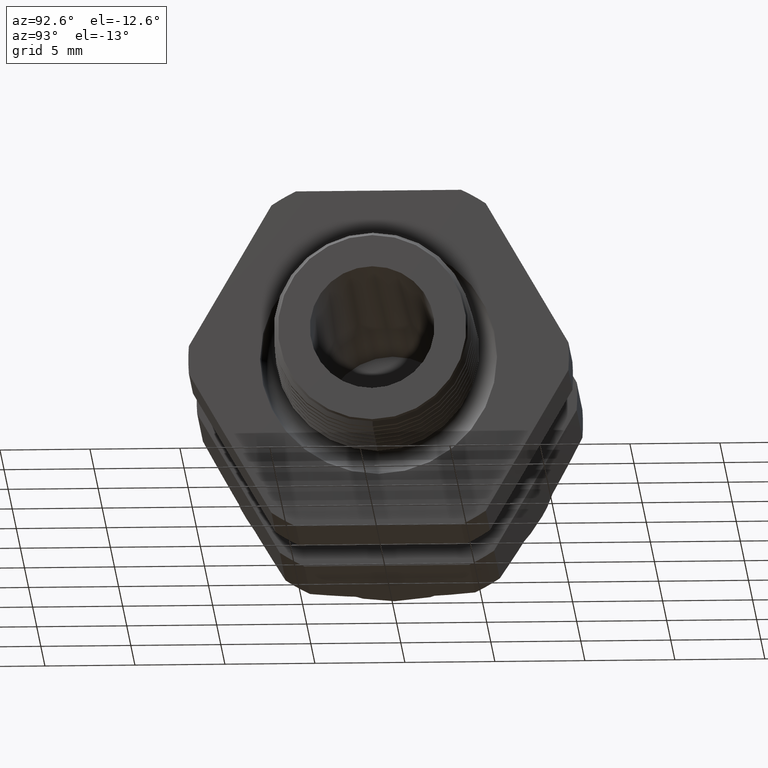
[diagram: clean part render]
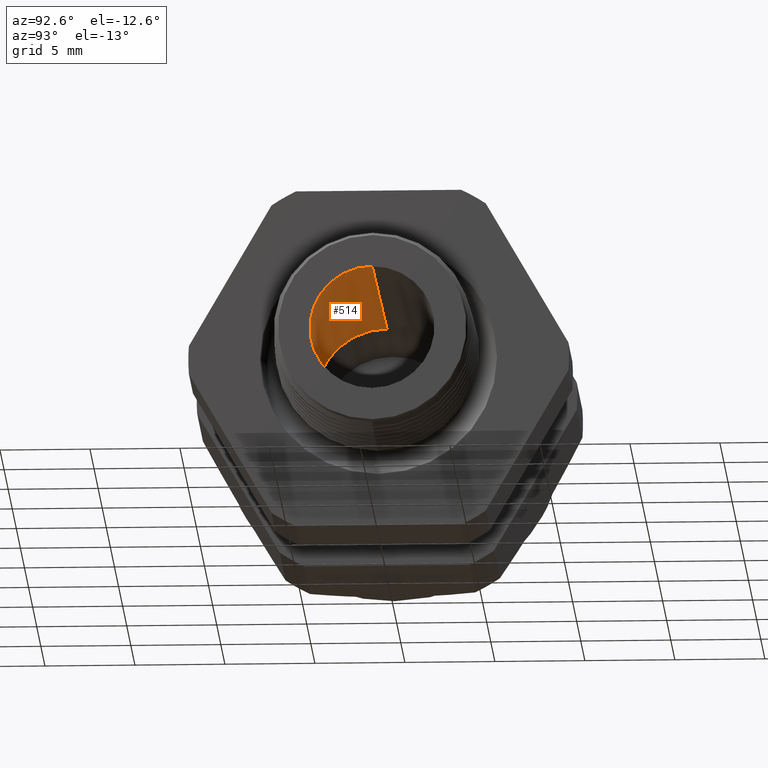
[diagram: same view with one face highlighted and labeled with its STEP entity id]
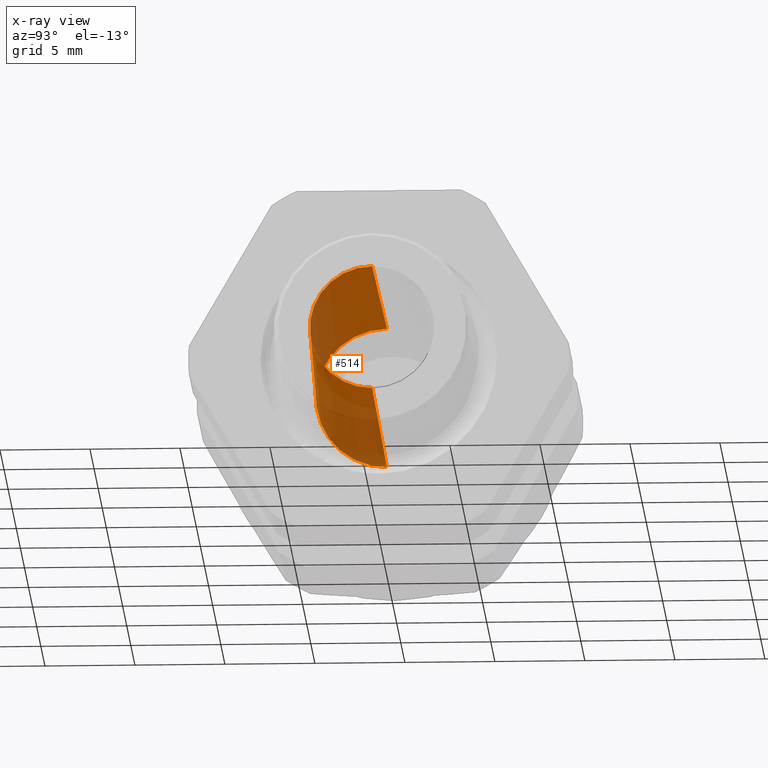
[diagram: x-ray of the same camera — body ghosted, the highlighted face saturated]
A machine part, auxiliary view. The second image highlights one B-rep face of the part: STEP entity #514.
The next image is the same camera in x-ray: the body ghosted, the highlighted face saturated — about 38% of this face is hidden behind the body in this view.
In plain terms, the highlighted conical surface has half-angle 1.5 deg.
Its self-contained STEP definition (entity closure, byte-faithful):
#440 = ORIENTED_EDGE ( 'NONE', *, *, #510, .F. ) ;
#441 = ORIENTED_EDGE ( 'NONE', *, *, #442, .F. ) ;
#442 = EDGE_CURVE ( 'NONE', #518, #508, #2217, .T. ) ;
#508 = VERTEX_POINT ( 'NONE', #2343 ) ;
#510 = EDGE_CURVE ( 'NONE', #508, #511, #2342, .T. ) ;
#511 = VERTEX_POINT ( 'NONE', #2337 ) ;
#514 = ADVANCED_FACE ( 'NONE', ( #2395 ), #2394, .F. ) ;
#515 = EDGE_LOOP ( 'NONE', ( #516, #520, #440, #441 ) ) ;
#516 = ORIENTED_EDGE ( 'NONE', *, *, #517, .T. ) ;
#517 = EDGE_CURVE ( 'NONE', #518, #519, #2389, .T. ) ;
#518 = VERTEX_POINT ( 'NONE', #2385 ) ;
#519 = VERTEX_POINT ( 'NONE', #2384 ) ;
#520 = ORIENTED_EDGE ( 'NONE', *, *, #522, .T. ) ;
#522 = EDGE_CURVE ( 'NONE', #519, #511, #2382, .T. ) ;
#2214 = DIRECTION ( 'NONE',  ( -0.9996573249755573700, 0.0000000000000000000, 0.02617694830786594000 ) ) ;
#2215 = VECTOR ( 'NONE', #2214, 39.37007874015748100 ) ;
#2216 = CARTESIAN_POINT ( 'NONE',  ( -0.7108661417322833500, 0.0000000000000000000, 0.1550000000000000000 ) ) ;
#2217 = LINE ( 'NONE', #2216, #2215 ) ;
#2332 = CARTESIAN_POINT ( 'NONE',  ( -0.7108661417322833500, 0.0000000000000000000, 0.0000000000000000000 ) ) ;
#2337 = CARTESIAN_POINT ( 'NONE',  ( -0.7108661417322833500, 1.898202538678397300E-017, -0.1550000000000000000 ) ) ;
#2338 = DIRECTION ( 'NONE',  ( 0.0000000000000000000, 0.0000000000000000000, -1.000000000000000000 ) ) ;
#2339 = DIRECTION ( 'NONE',  ( 1.000000000000000000, 0.0000000000000000000, 0.0000000000000000000 ) ) ;
#2340 = CARTESIAN_POINT ( 'NONE',  ( -0.7108661417322833500, 0.0000000000000000000, 0.0000000000000000000 ) ) ;
#2341 = AXIS2_PLACEMENT_3D ( 'NONE', #2340, #2339, #2338 ) ;
#2342 = CIRCLE ( 'NONE', #2341, 0.1550000000000000000 ) ;
#2343 = CARTESIAN_POINT ( 'NONE',  ( -0.7108661417322833500, 0.0000000000000000000, 0.1550000000000000000 ) ) ;
#2379 = DIRECTION ( 'NONE',  ( -0.9996573249755573700, 3.205751595667375000E-018, -0.02617694830786594000 ) ) ;
#2380 = VECTOR ( 'NONE', #2379, 39.37007874015748100 ) ;
#2381 = CARTESIAN_POINT ( 'NONE',  ( -0.7108661417322833500, 1.898202538678397300E-017, -0.1550000000000000000 ) ) ;
#2382 = LINE ( 'NONE', #2381, #2380 ) ;
#2384 = CARTESIAN_POINT ( 'NONE',  ( 0.0000000000000000000, 1.784220466460805300E-017, -0.1363853149664130400 ) ) ;
#2385 = CARTESIAN_POINT ( 'NONE',  ( 0.0000000000000000000, 0.0000000000000000000, 0.1363853149664130400 ) ) ;
#2386 = DIRECTION ( 'NONE',  ( 0.0000000000000000000, 0.0000000000000000000, -1.000000000000000000 ) ) ;
#2387 = DIRECTION ( 'NONE',  ( 1.000000000000000000, 0.0000000000000000000, 0.0000000000000000000 ) ) ;
#2388 = AXIS2_PLACEMENT_3D ( 'NONE', #2393, #2387, #2386 ) ;
#2389 = CIRCLE ( 'NONE', #2388, 0.1363853149664130400 ) ;
#2390 = DIRECTION ( 'NONE',  ( 0.0000000000000000000, 0.0000000000000000000, 1.000000000000000000 ) ) ;
#2391 = DIRECTION ( 'NONE',  ( -1.000000000000000000, 0.0000000000000000000, 0.0000000000000000000 ) ) ;
#2392 = AXIS2_PLACEMENT_3D ( 'NONE', #2332, #2391, #2390 ) ;
#2393 = CARTESIAN_POINT ( 'NONE',  ( 0.0000000000000000000, 0.0000000000000000000, 0.0000000000000000000 ) ) ;
#2394 = CONICAL_SURFACE ( 'NONE', #2392, 0.1550000000000000000, 0.02617993877990772800 ) ;
#2395 = FACE_OUTER_BOUND ( 'NONE', #515, .T. ) ;